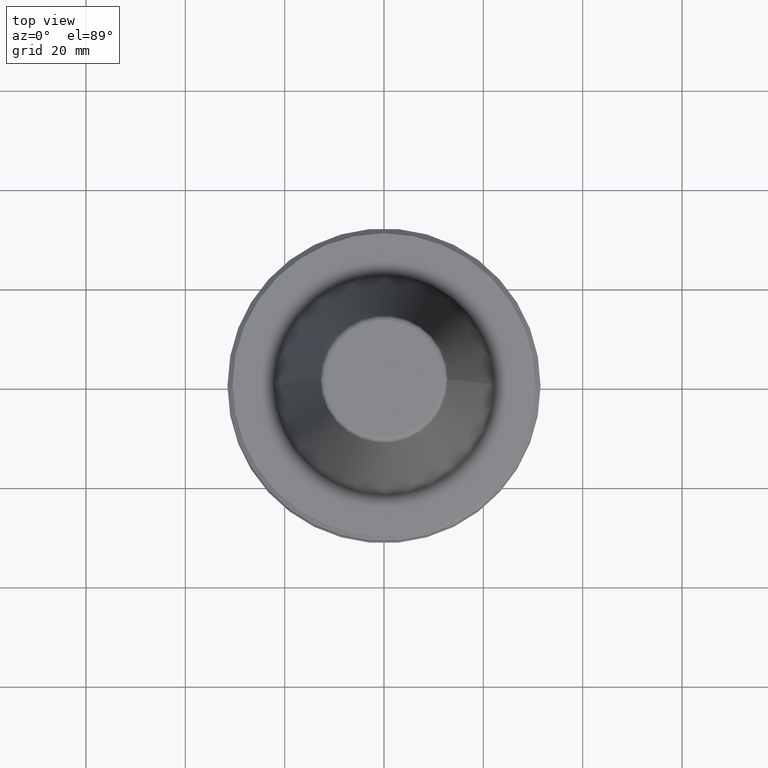
[diagram: clean part render]
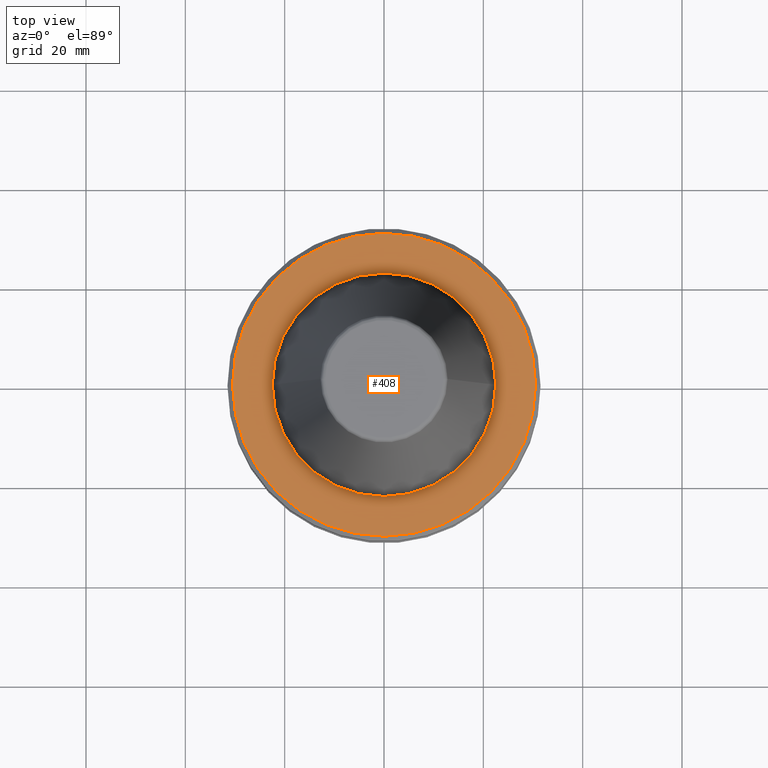
[diagram: same view with one face highlighted and labeled with its STEP entity id]
A machine part, top view. The second image highlights one B-rep face of the part: STEP entity #408.
In plain terms, the highlighted planar face has unit normal (0, 0, -1).
Its self-contained STEP definition (entity closure, byte-faithful):
#13 = DIRECTION ( 'NONE',  ( -0.0000000000000000000, -0.0000000000000000000, 1.000000000000000000 ) ) ;
#51 = AXIS2_PLACEMENT_3D ( 'NONE', #270, #836, #362 ) ;
#72 = DIRECTION ( 'NONE',  ( 1.000000000000000000, 0.0000000000000000000, 0.0000000000000000000 ) ) ;
#96 = ORIENTED_EDGE ( 'NONE', *, *, #445, .F. ) ;
#121 = VERTEX_POINT ( 'NONE', #716 ) ;
#166 = EDGE_CURVE ( 'NONE', #962, #895, #872, .T. ) ;
#172 = ORIENTED_EDGE ( 'NONE', *, *, #258, .T. ) ;
#202 = FACE_BOUND ( 'NONE', #740, .T. ) ;
#249 = PLANE ( 'NONE',  #394 ) ;
#258 = EDGE_CURVE ( 'NONE', #895, #962, #544, .T. ) ;
#269 = EDGE_CURVE ( 'NONE', #121, #944, #330, .T. ) ;
#270 = CARTESIAN_POINT ( 'NONE',  ( 0.0000000000000000000, 0.0000000000000000000, -67.40000000000034700 ) ) ;
#330 = CIRCLE ( 'NONE', #51, 22.49999999999996400 ) ;
#348 = EDGE_LOOP ( 'NONE', ( #172, #901 ) ) ;
#362 = DIRECTION ( 'NONE',  ( 1.000000000000000000, 0.0000000000000000000, 0.0000000000000000000 ) ) ;
#375 = CARTESIAN_POINT ( 'NONE',  ( 0.0000000000000000000, 0.0000000000000000000, -67.40000000000034700 ) ) ;
#394 = AXIS2_PLACEMENT_3D ( 'NONE', #744, #420, #976 ) ;
#408 = ADVANCED_FACE ( 'NONE', ( #202, #419 ), #249, .F. ) ;
#419 = FACE_OUTER_BOUND ( 'NONE', #348, .T. ) ;
#420 = DIRECTION ( 'NONE',  ( 0.0000000000000000000, 0.0000000000000000000, -1.000000000000000000 ) ) ;
#443 = CIRCLE ( 'NONE', #488, 22.49999999999996400 ) ;
#445 = EDGE_CURVE ( 'NONE', #944, #121, #443, .T. ) ;
#447 = DIRECTION ( 'NONE',  ( 1.000000000000000000, 0.0000000000000000000, 0.0000000000000000000 ) ) ;
#488 = AXIS2_PLACEMENT_3D ( 'NONE', #375, #921, #447 ) ;
#510 = CARTESIAN_POINT ( 'NONE',  ( 0.0000000000000000000, 0.0000000000000000000, -67.40000000000034700 ) ) ;
#513 = CARTESIAN_POINT ( 'NONE',  ( 30.49999999999997200, 3.796405077356798300E-015, -67.40000000000034700 ) ) ;
#544 = CIRCLE ( 'NONE', #660, 30.49999999999997200 ) ;
#577 = DIRECTION ( 'NONE',  ( -0.0000000000000000000, -0.0000000000000000000, 1.000000000000000000 ) ) ;
#608 = DIRECTION ( 'NONE',  ( 1.000000000000000000, 0.0000000000000000000, 0.0000000000000000000 ) ) ;
#611 = CARTESIAN_POINT ( 'NONE',  ( -30.49999999999997200, 0.0000000000000000000, -67.40000000000034700 ) ) ;
#660 = AXIS2_PLACEMENT_3D ( 'NONE', #510, #13, #608 ) ;
#716 = CARTESIAN_POINT ( 'NONE',  ( 22.49999999999996400, 0.0000000000000000000, -67.40000000000034700 ) ) ;
#727 = ORIENTED_EDGE ( 'NONE', *, *, #269, .F. ) ;
#740 = EDGE_LOOP ( 'NONE', ( #727, #96 ) ) ;
#744 = CARTESIAN_POINT ( 'NONE',  ( 0.0000000000000000000, 0.0000000000000000000, -67.40000000000034700 ) ) ;
#836 = DIRECTION ( 'NONE',  ( -0.0000000000000000000, -0.0000000000000000000, 1.000000000000000000 ) ) ;
#872 = CIRCLE ( 'NONE', #888, 30.49999999999997200 ) ;
#888 = AXIS2_PLACEMENT_3D ( 'NONE', #1039, #577, #72 ) ;
#895 = VERTEX_POINT ( 'NONE', #611 ) ;
#901 = ORIENTED_EDGE ( 'NONE', *, *, #166, .T. ) ;
#921 = DIRECTION ( 'NONE',  ( -0.0000000000000000000, -0.0000000000000000000, 1.000000000000000000 ) ) ;
#934 = CARTESIAN_POINT ( 'NONE',  ( -22.49999999999996400, 2.755455298081540400E-015, -67.40000000000034700 ) ) ;
#944 = VERTEX_POINT ( 'NONE', #934 ) ;
#962 = VERTEX_POINT ( 'NONE', #513 ) ;
#976 = DIRECTION ( 'NONE',  ( -1.000000000000000000, 0.0000000000000000000, -0.0000000000000000000 ) ) ;
#1039 = CARTESIAN_POINT ( 'NONE',  ( 0.0000000000000000000, 0.0000000000000000000, -67.40000000000034700 ) ) ;